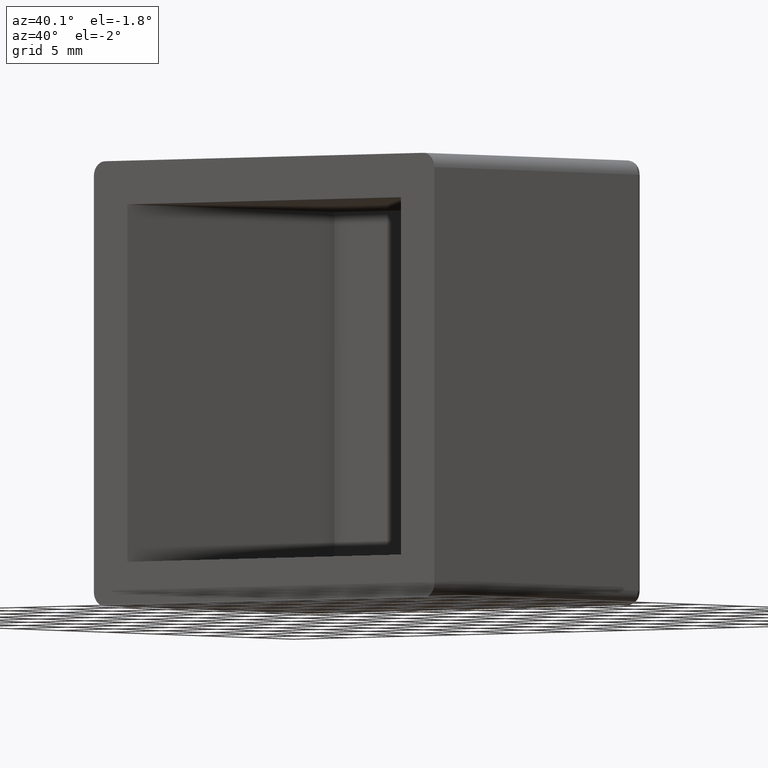
[diagram: clean part render]
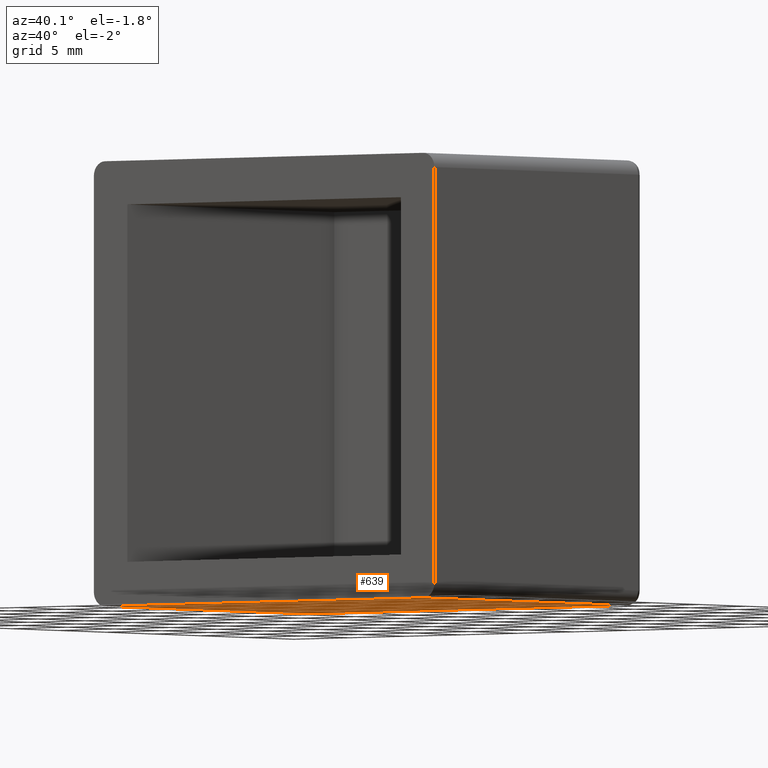
[diagram: same view with one face highlighted and labeled with its STEP entity id]
A machine part, auxiliary view. The second image highlights one B-rep face of the part: STEP entity #639.
In plain terms, the highlighted planar face has unit normal (0, 0, -1).
Its self-contained STEP definition (entity closure, byte-faithful):
#119=FACE_OUTER_BOUND('',#162,.T.);
#162=EDGE_LOOP('',(#505,#506,#507,#508));
#195=LINE('',#1073,#235);
#205=LINE('',#1181,#245);
#208=LINE('',#1186,#248);
#209=LINE('',#1187,#249);
#235=VECTOR('',#794,21.6519933315227);
#245=VECTOR('',#836,21.6519933315227);
#248=VECTOR('',#843,28.5);
#249=VECTOR('',#844,28.5);
#287=VERTEX_POINT('',#1036);
#290=VERTEX_POINT('',#1071);
#296=VERTEX_POINT('',#1113);
#303=VERTEX_POINT('',#1177);
#354=EDGE_CURVE('',#290,#287,#195,.T.);
#377=EDGE_CURVE('',#296,#303,#205,.T.);
#380=EDGE_CURVE('',#290,#303,#208,.T.);
#381=EDGE_CURVE('',#287,#296,#209,.T.);
#505=ORIENTED_EDGE('',*,*,#354,.F.);
#506=ORIENTED_EDGE('',*,*,#380,.T.);
#507=ORIENTED_EDGE('',*,*,#377,.F.);
#508=ORIENTED_EDGE('',*,*,#381,.F.);
#611=PLANE('',#702);
#639=ADVANCED_FACE('',(#119),#611,.T.);
#702=AXIS2_PLACEMENT_3D('',#1185,#841,#842);
#794=DIRECTION('',(2.01858731750028E-16,1.,0.));
#836=DIRECTION('',(0.,-1.,0.));
#841=DIRECTION('center_axis',(0.,0.,-1.));
#842=DIRECTION('ref_axis',(-1.,0.,0.));
#843=DIRECTION('',(-1.,0.,0.));
#844=DIRECTION('',(-1.,0.,0.));
#1036=CARTESIAN_POINT('',(29.5,21.6519933315227,-15.25));
#1071=CARTESIAN_POINT('',(29.5,0.,-15.25));
#1073=CARTESIAN_POINT('',(29.5,5.5,-15.25));
#1113=CARTESIAN_POINT('',(1.,21.6519933315227,-15.25));
#1177=CARTESIAN_POINT('',(1.,0.,-15.25));
#1181=CARTESIAN_POINT('',(1.,16.5,-15.25));
#1185=CARTESIAN_POINT('Origin',(15.25,11.,-15.25));
#1186=CARTESIAN_POINT('',(0.,0.,-15.25));
#1187=CARTESIAN_POINT('',(22.875,21.6519933315227,-15.25));